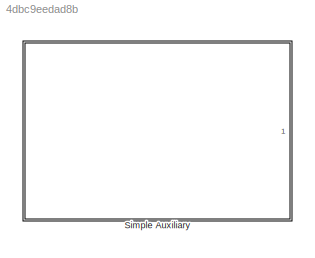
MODEL slx_4dbc9eedad8b
KIND library
CONFIG AbsTol = auto
CONFIG EnableMultiTasking = off
CONFIG FixedStep = auto
CONFIG MaxStep = auto
CONFIG MinStep = auto
CONFIG RelTol = 1e-3
CONFIG SampleTimeConstraint = Unconstrained
CONFIG Solver = VariableStepAuto
CONFIG SolverName = VariableStepAuto
CONFIG StartTime = 0.0
CONFIG StopTime = 10.0
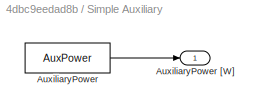
BLOCK [SubSystem] Simple Auxiliary
  Ports = [0, 1]
  RequestExecContextInheritance = off
BLOCK [Constant] Simple Auxiliary/AuxiliaryPower
  SampleTime = LocalSampleTime
  Value = AuxPower
BLOCK [Outport] Simple Auxiliary/AuxiliaryPower [W]
  IconDisplay = Port number
  SampleTime = GlobalSampleTime
LINE Simple Auxiliary/AuxiliaryPower:1 -> Simple Auxiliary/AuxiliaryPower [W]:1
